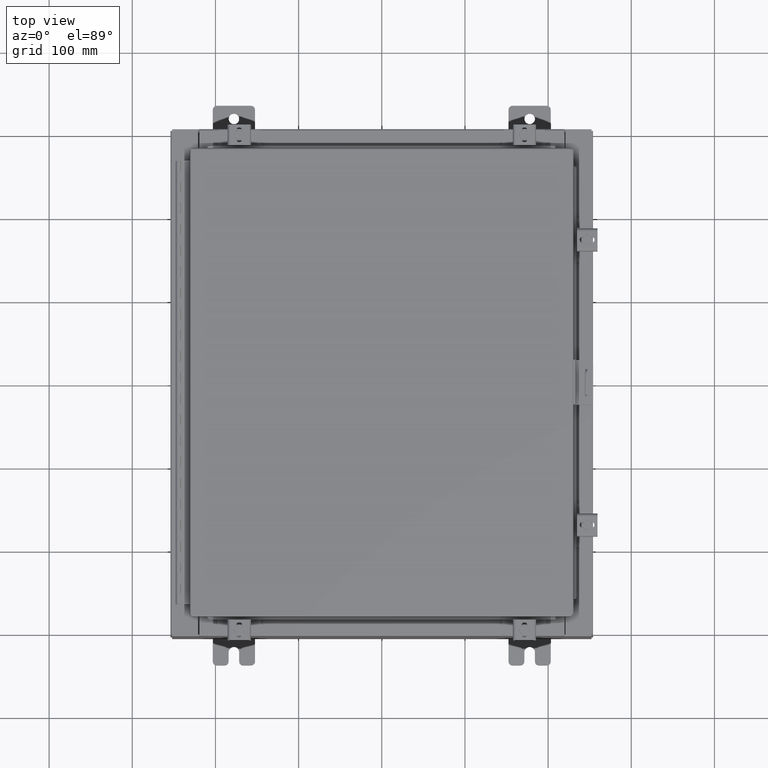
[diagram: clean part render]
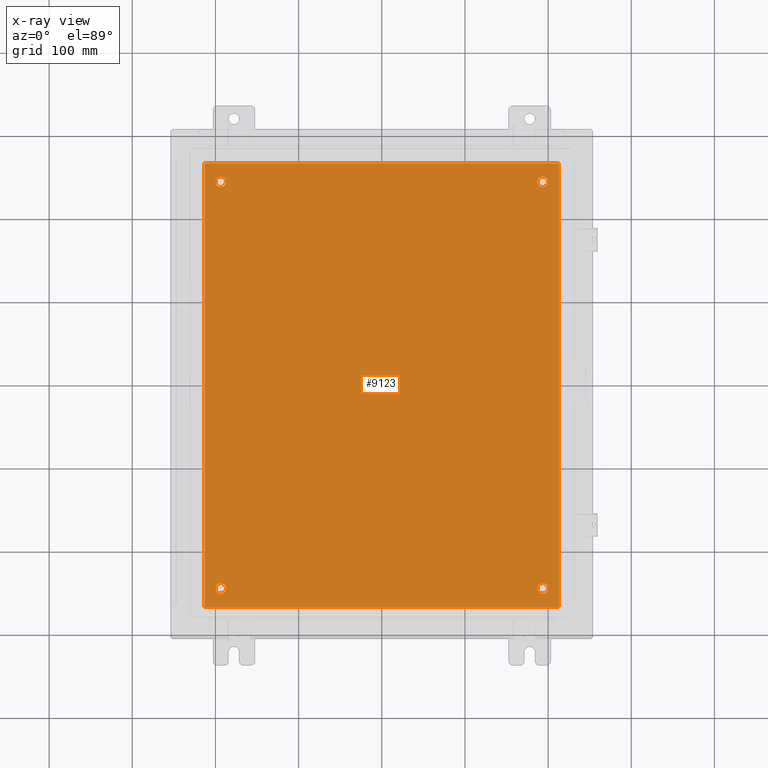
[diagram: x-ray — body ghosted, one internal face saturated and labeled with its STEP entity id]
A machine part, top view, then the same camera in x-ray: the body is ghosted and one INTERNAL B-rep face — a face not visible from any outside direction — is saturated and labeled: STEP entity #9123.
In plain terms, the highlighted planar face has unit normal (0, 0, -1).
Its self-contained STEP definition (entity closure, byte-faithful):
#179 = CARTESIAN_POINT ( 'NONE',  ( -7.875000000000003600, -9.625000000000001800, -0.1039999999999999800 ) ) ;
#1164 = ORIENTED_EDGE ( 'NONE', *, *, #28031, .T. ) ;
#1274 = FACE_OUTER_BOUND ( 'NONE', #8567, .T. ) ;
#1297 = AXIS2_PLACEMENT_3D ( 'NONE', #29978, #29833, #29665 ) ;
#1307 = CARTESIAN_POINT ( 'NONE',  ( 0.0000000000000000000, 0.0000000000000000000, -0.1039999999999999800 ) ) ;
#1721 = EDGE_CURVE ( 'NONE', #18729, #23820, #6899, .T. ) ;
#1896 = VERTEX_POINT ( 'NONE', #14844 ) ;
#2490 = FACE_BOUND ( 'NONE', #15498, .T. ) ;
#3477 = VERTEX_POINT ( 'NONE', #17165 ) ;
#4014 = CARTESIAN_POINT ( 'NONE',  ( 8.382999999999999100, 10.50000000000000200, -0.1039999999999999800 ) ) ;
#5138 = PLANE ( 'NONE',  #8437 ) ;
#5280 = EDGE_CURVE ( 'NONE', #3477, #16841, #24375, .T. ) ;
#5327 = FACE_BOUND ( 'NONE', #29689, .T. ) ;
#5912 = AXIS2_PLACEMENT_3D ( 'NONE', #26168, #31322, #7461 ) ;
#5999 = ORIENTED_EDGE ( 'NONE', *, *, #16206, .F. ) ;
#6098 = DIRECTION ( 'NONE',  ( 0.0000000000000000000, -1.000000000000000000, 0.0000000000000000000 ) ) ;
#6195 = DIRECTION ( 'NONE',  ( -1.000000000000000000, 0.0000000000000000000, 0.0000000000000000000 ) ) ;
#6206 = VERTEX_POINT ( 'NONE', #9329 ) ;
#6699 = EDGE_CURVE ( 'NONE', #28770, #16184, #21087, .T. ) ;
#6899 = CIRCLE ( 'NONE', #13333, 0.2499999999999987000 ) ;
#7461 = DIRECTION ( 'NONE',  ( -1.000000000000000000, 0.0000000000000000000, 0.0000000000000000000 ) ) ;
#7628 = EDGE_CURVE ( 'NONE', #15590, #19517, #25123, .T. ) ;
#8102 = ORIENTED_EDGE ( 'NONE', *, *, #7628, .T. ) ;
#8121 = DIRECTION ( 'NONE',  ( -1.000000000000000000, 0.0000000000000000000, 0.0000000000000000000 ) ) ;
#8225 = DIRECTION ( 'NONE',  ( -0.0000000000000000000, -0.0000000000000000000, 1.000000000000000000 ) ) ;
#8437 = AXIS2_PLACEMENT_3D ( 'NONE', #1307, #32317, #19064 ) ;
#8545 = FACE_BOUND ( 'NONE', #9762, .T. ) ;
#8567 = EDGE_LOOP ( 'NONE', ( #30874, #5999, #14963, #30036 ) ) ;
#8580 = CARTESIAN_POINT ( 'NONE',  ( 7.625000000000004400, 9.625000000000001800, -0.1039999999999999800 ) ) ;
#9099 = DIRECTION ( 'NONE',  ( 1.000000000000000000, 0.0000000000000000000, 0.0000000000000000000 ) ) ;
#9123 = ADVANCED_FACE ( 'NONE', ( #8545, #2490, #5327, #18182, #1274 ), #5138, .T. ) ;
#9329 = CARTESIAN_POINT ( 'NONE',  ( -8.383000000000002700, 10.50000000000000200, -0.1039999999999998100 ) ) ;
#9557 = DIRECTION ( 'NONE',  ( -0.0000000000000000000, -0.0000000000000000000, 1.000000000000000000 ) ) ;
#9749 = DIRECTION ( 'NONE',  ( -1.000000000000000000, 0.0000000000000000000, 0.0000000000000000000 ) ) ;
#9762 = EDGE_LOOP ( 'NONE', ( #32640, #32526 ) ) ;
#10299 = CIRCLE ( 'NONE', #18814, 0.2499999999999998100 ) ;
#10448 = CARTESIAN_POINT ( 'NONE',  ( -7.375000000000004400, -9.625000000000001800, -0.1039999999999999800 ) ) ;
#10704 = CARTESIAN_POINT ( 'NONE',  ( -8.500000000000001800, -10.50000000000000000, -0.1039999999999999800 ) ) ;
#11023 = EDGE_CURVE ( 'NONE', #19161, #6206, #19010, .T. ) ;
#11340 = DIRECTION ( 'NONE',  ( -0.0000000000000000000, -0.0000000000000000000, 1.000000000000000000 ) ) ;
#11502 = AXIS2_PLACEMENT_3D ( 'NONE', #25196, #17239, #15636 ) ;
#11849 = ORIENTED_EDGE ( 'NONE', *, *, #30152, .T. ) ;
#11993 = AXIS2_PLACEMENT_3D ( 'NONE', #29509, #11340, #14274 ) ;
#12427 = EDGE_CURVE ( 'NONE', #1896, #32096, #20179, .T. ) ;
#13333 = AXIS2_PLACEMENT_3D ( 'NONE', #25082, #23080, #9749 ) ;
#13720 = AXIS2_PLACEMENT_3D ( 'NONE', #8580, #8225, #8121 ) ;
#14274 = DIRECTION ( 'NONE',  ( -1.000000000000000000, 0.0000000000000000000, 0.0000000000000000000 ) ) ;
#14803 = CARTESIAN_POINT ( 'NONE',  ( -7.625000000000004400, -9.625000000000001800, -0.1039999999999999800 ) ) ;
#14844 = CARTESIAN_POINT ( 'NONE',  ( -8.383000000000002700, -10.50000000000000000, -0.1039999999999998100 ) ) ;
#14848 = DIRECTION ( 'NONE',  ( -1.000000000000000000, -0.0000000000000000000, -0.0000000000000000000 ) ) ;
#14963 = ORIENTED_EDGE ( 'NONE', *, *, #11023, .F. ) ;
#15498 = EDGE_LOOP ( 'NONE', ( #22799, #32306 ) ) ;
#15590 = VERTEX_POINT ( 'NONE', #18339 ) ;
#15614 = EDGE_CURVE ( 'NONE', #32096, #19161, #17645, .T. ) ;
#15636 = DIRECTION ( 'NONE',  ( -1.000000000000000000, 0.0000000000000000000, 0.0000000000000000000 ) ) ;
#15756 = CARTESIAN_POINT ( 'NONE',  ( -8.500000000000001800, 10.50000000000000200, -0.1039999999999999800 ) ) ;
#16184 = VERTEX_POINT ( 'NONE', #10448 ) ;
#16206 = EDGE_CURVE ( 'NONE', #6206, #1896, #31892, .T. ) ;
#16252 = VECTOR ( 'NONE', #14848, 39.37007874015748100 ) ;
#16608 = CARTESIAN_POINT ( 'NONE',  ( 7.375000000000005300, 9.625000000000001800, -0.1039999999999999800 ) ) ;
#16841 = VERTEX_POINT ( 'NONE', #22729 ) ;
#16908 = DIRECTION ( 'NONE',  ( 0.0000000000000000000, 1.000000000000000000, 0.0000000000000000000 ) ) ;
#17146 = VECTOR ( 'NONE', #9099, 39.37007874015748100 ) ;
#17165 = CARTESIAN_POINT ( 'NONE',  ( -7.375000000000004400, 9.625000000000001800, -0.1039999999999999800 ) ) ;
#17239 = DIRECTION ( 'NONE',  ( -0.0000000000000000000, -0.0000000000000000000, 1.000000000000000000 ) ) ;
#17472 = CARTESIAN_POINT ( 'NONE',  ( 8.382999999999999100, -10.50000000000000200, -0.1039999999999998100 ) ) ;
#17645 = LINE ( 'NONE', #17472, #31010 ) ;
#18086 = CARTESIAN_POINT ( 'NONE',  ( 8.382999999999999100, -10.50000000000000000, -0.1039999999999999800 ) ) ;
#18182 = FACE_BOUND ( 'NONE', #28753, .T. ) ;
#18339 = CARTESIAN_POINT ( 'NONE',  ( 7.875000000000002700, 9.625000000000001800, -0.1039999999999999800 ) ) ;
#18433 = CARTESIAN_POINT ( 'NONE',  ( 7.875000000000002700, -9.625000000000001800, -0.1039999999999999800 ) ) ;
#18634 = CIRCLE ( 'NONE', #11502, 0.2499999999999998100 ) ;
#18729 = VERTEX_POINT ( 'NONE', #27366 ) ;
#18814 = AXIS2_PLACEMENT_3D ( 'NONE', #14803, #9557, #32606 ) ;
#19010 = LINE ( 'NONE', #15756, #16252 ) ;
#19064 = DIRECTION ( 'NONE',  ( -1.000000000000000000, 0.0000000000000000000, -0.0000000000000000000 ) ) ;
#19161 = VERTEX_POINT ( 'NONE', #4014 ) ;
#19436 = CIRCLE ( 'NONE', #11993, 0.2499999999999987000 ) ;
#19517 = VERTEX_POINT ( 'NONE', #16608 ) ;
#20179 = LINE ( 'NONE', #10704, #17146 ) ;
#21087 = CIRCLE ( 'NONE', #1297, 0.2499999999999998100 ) ;
#22729 = CARTESIAN_POINT ( 'NONE',  ( -7.875000000000003600, 9.625000000000001800, -0.1039999999999999800 ) ) ;
#22799 = ORIENTED_EDGE ( 'NONE', *, *, #29186, .T. ) ;
#23080 = DIRECTION ( 'NONE',  ( -0.0000000000000000000, -0.0000000000000000000, 1.000000000000000000 ) ) ;
#23180 = CARTESIAN_POINT ( 'NONE',  ( -8.383000000000002700, 10.50000000000000400, -0.1039999999999998100 ) ) ;
#23820 = VERTEX_POINT ( 'NONE', #18433 ) ;
#24375 = CIRCLE ( 'NONE', #5912, 0.2499999999999998100 ) ;
#24447 = VECTOR ( 'NONE', #6098, 39.37007874015748100 ) ;
#24877 = CIRCLE ( 'NONE', #28283, 0.2499999999999987000 ) ;
#25082 = CARTESIAN_POINT ( 'NONE',  ( 7.625000000000004400, -9.625000000000001800, -0.1039999999999999800 ) ) ;
#25123 = CIRCLE ( 'NONE', #13720, 0.2499999999999987000 ) ;
#25196 = CARTESIAN_POINT ( 'NONE',  ( -7.625000000000004400, 9.625000000000001800, -0.1039999999999999800 ) ) ;
#25203 = CARTESIAN_POINT ( 'NONE',  ( 7.625000000000004400, -9.625000000000001800, -0.1039999999999999800 ) ) ;
#26168 = CARTESIAN_POINT ( 'NONE',  ( -7.625000000000004400, 9.625000000000001800, -0.1039999999999999800 ) ) ;
#27366 = CARTESIAN_POINT ( 'NONE',  ( 7.375000000000005300, -9.625000000000001800, -0.1039999999999999800 ) ) ;
#28031 = EDGE_CURVE ( 'NONE', #19517, #15590, #19436, .T. ) ;
#28283 = AXIS2_PLACEMENT_3D ( 'NONE', #25203, #29673, #6195 ) ;
#28753 = EDGE_LOOP ( 'NONE', ( #31116, #11849 ) ) ;
#28770 = VERTEX_POINT ( 'NONE', #179 ) ;
#29186 = EDGE_CURVE ( 'NONE', #23820, #18729, #24877, .T. ) ;
#29330 = EDGE_CURVE ( 'NONE', #16184, #28770, #10299, .T. ) ;
#29509 = CARTESIAN_POINT ( 'NONE',  ( 7.625000000000004400, 9.625000000000001800, -0.1039999999999999800 ) ) ;
#29665 = DIRECTION ( 'NONE',  ( -1.000000000000000000, 0.0000000000000000000, 0.0000000000000000000 ) ) ;
#29673 = DIRECTION ( 'NONE',  ( -0.0000000000000000000, -0.0000000000000000000, 1.000000000000000000 ) ) ;
#29689 = EDGE_LOOP ( 'NONE', ( #8102, #1164 ) ) ;
#29833 = DIRECTION ( 'NONE',  ( -0.0000000000000000000, -0.0000000000000000000, 1.000000000000000000 ) ) ;
#29978 = CARTESIAN_POINT ( 'NONE',  ( -7.625000000000004400, -9.625000000000001800, -0.1039999999999999800 ) ) ;
#30036 = ORIENTED_EDGE ( 'NONE', *, *, #15614, .F. ) ;
#30152 = EDGE_CURVE ( 'NONE', #16841, #3477, #18634, .T. ) ;
#30874 = ORIENTED_EDGE ( 'NONE', *, *, #12427, .F. ) ;
#31010 = VECTOR ( 'NONE', #16908, 39.37007874015748100 ) ;
#31116 = ORIENTED_EDGE ( 'NONE', *, *, #5280, .T. ) ;
#31322 = DIRECTION ( 'NONE',  ( -0.0000000000000000000, -0.0000000000000000000, 1.000000000000000000 ) ) ;
#31892 = LINE ( 'NONE', #23180, #24447 ) ;
#32096 = VERTEX_POINT ( 'NONE', #18086 ) ;
#32306 = ORIENTED_EDGE ( 'NONE', *, *, #1721, .T. ) ;
#32317 = DIRECTION ( 'NONE',  ( 0.0000000000000000000, 0.0000000000000000000, -1.000000000000000000 ) ) ;
#32526 = ORIENTED_EDGE ( 'NONE', *, *, #6699, .T. ) ;
#32606 = DIRECTION ( 'NONE',  ( -1.000000000000000000, 0.0000000000000000000, 0.0000000000000000000 ) ) ;
#32640 = ORIENTED_EDGE ( 'NONE', *, *, #29330, .T. ) ;